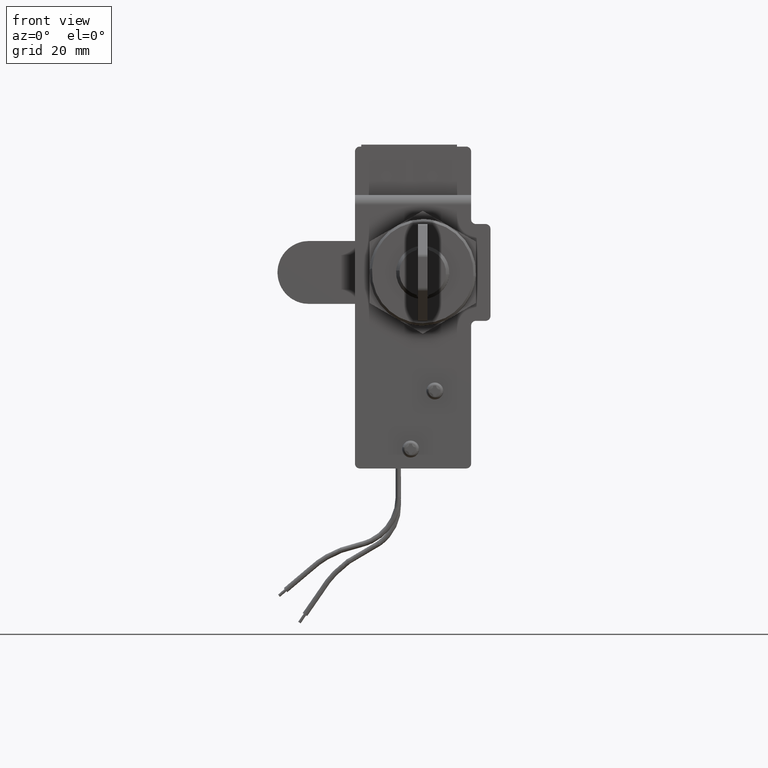
[diagram: clean part render]
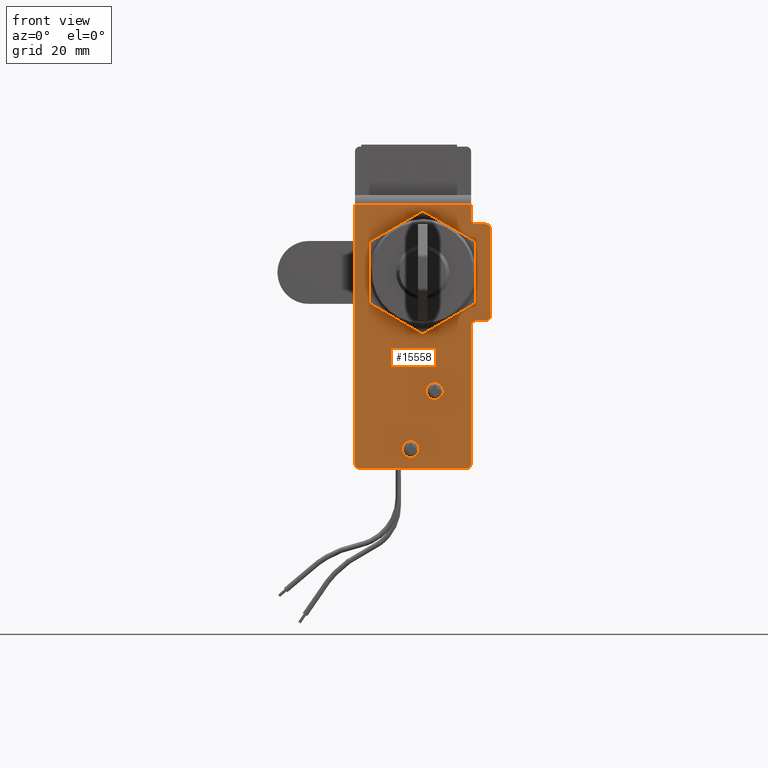
[diagram: same view with one face highlighted and labeled with its STEP entity id]
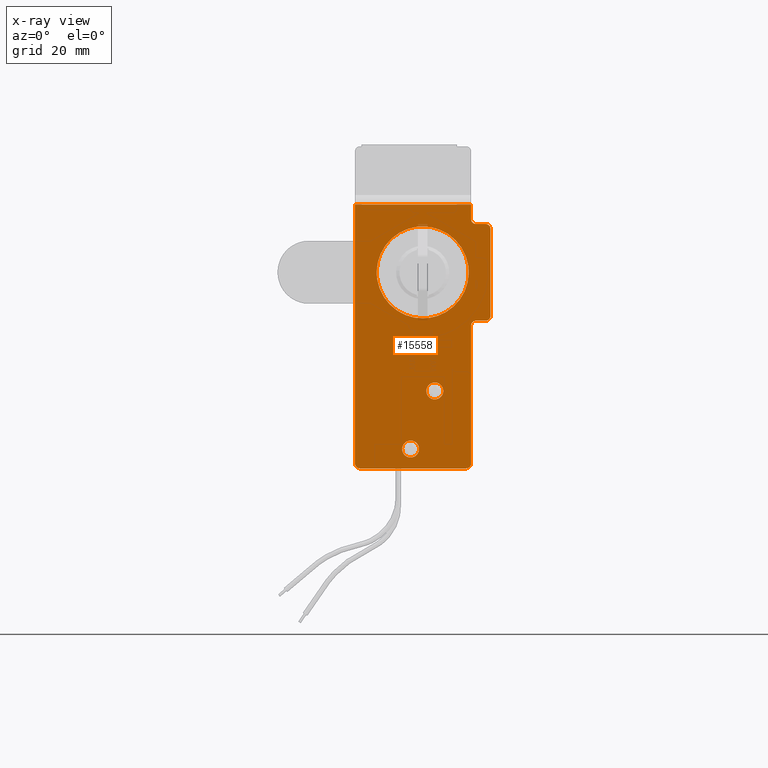
[diagram: x-ray of the same camera — body ghosted, the highlighted face saturated]
A machine part, front view. The second image highlights one B-rep face of the part: STEP entity #15558.
The next image is the same camera in x-ray: the body ghosted, the highlighted face saturated — about 0% of this face is hidden behind the body in this view.
In plain terms, the highlighted face is a freeform B-spline surface patch.
Its self-contained STEP definition (entity closure, byte-faithful):
#12590=CARTESIAN_POINT('',(-0.753264102782336,8.300000000000001,-36.606834944523762));
#12591=VERTEX_POINT('',#12590);
#12597=CARTESIAN_POINT('',(-2.499999999999945,8.300000000000001,-34.749999999999993));
#12598=VERTEX_POINT('',#12597);
#12599=CARTESIAN_POINT('',(-0.753264102782335,8.300000000000001,-36.606834944523769));
#12600=CARTESIAN_POINT('',(-0.749999999999944,8.300000000000001,-36.553467335941889));
#12601=CARTESIAN_POINT('',(-0.749999999999944,8.300000000000001,-36.500000000000000));
#12602=CARTESIAN_POINT('',(-0.749999999999944,8.300000000000001,-34.749999999999993));
#12603=CARTESIAN_POINT('',(-2.499999999999945,8.300000000000001,-34.749999999999993));
#12611=(BOUNDED_CURVE()B_SPLINE_CURVE(2,(#12599,#12600,#12601,#12602,#12603),.UNSPECIFIED.,.F.,.U.)B_SPLINE_CURVE_WITH_KNOTS((3,2,3),(0.239332962208604,0.250000000000000,0.500000000000000),.UNSPECIFIED.)CURVE()GEOMETRIC_REPRESENTATION_ITEM()RATIONAL_B_SPLINE_CURVE((0.976072041601695,0.987502787864293,1.0,0.707106781186547,1.0))REPRESENTATION_ITEM(''));
#12612=EDGE_CURVE('',#12591,#12598,#12611,.T.);
#12614=CARTESIAN_POINT('',(-4.246735897217554,8.300000000000001,-36.393165055476253));
#12615=VERTEX_POINT('',#12614);
#12616=CARTESIAN_POINT('',(-2.499999999999945,8.300000000000001,-34.749999999999993));
#12617=CARTESIAN_POINT('',(-4.146235616765995,8.300000000000001,-34.750000000000000));
#12618=CARTESIAN_POINT('',(-4.246735897217554,8.300000000000001,-36.393165055476246));
#12626=(BOUNDED_CURVE()B_SPLINE_CURVE(2,(#12616,#12617,#12618),.UNSPECIFIED.,.F.,.U.)B_SPLINE_CURVE_WITH_KNOTS((3,3),(0.500000000000000,0.739332962208604),.UNSPECIFIED.)CURVE()GEOMETRIC_REPRESENTATION_ITEM()RATIONAL_B_SPLINE_CURVE((1.0,0.719603993322254,0.976072041601696))REPRESENTATION_ITEM(''));
#12627=EDGE_CURVE('',#12598,#12615,#12626,.T.);
#12661=CARTESIAN_POINT('',(-2.499999999999945,8.300000000000001,-38.250000000000000));
#12662=VERTEX_POINT('',#12661);
#12663=CARTESIAN_POINT('',(-4.246735897217554,8.300000000000001,-36.393165055476238));
#12664=CARTESIAN_POINT('',(-4.249999999999943,8.300000000000001,-36.446532664058118));
#12665=CARTESIAN_POINT('',(-4.249999999999944,8.300000000000001,-36.500000000000000));
#12666=CARTESIAN_POINT('',(-4.249999999999944,8.300000000000001,-38.250000000000000));
#12667=CARTESIAN_POINT('',(-2.499999999999945,8.300000000000001,-38.250000000000000));
#12675=(BOUNDED_CURVE()B_SPLINE_CURVE(2,(#12663,#12664,#12665,#12666,#12667),.UNSPECIFIED.,.F.,.U.)B_SPLINE_CURVE_WITH_KNOTS((3,2,3),(0.739332962208604,0.750000000000000,1.0),.UNSPECIFIED.)CURVE()GEOMETRIC_REPRESENTATION_ITEM()RATIONAL_B_SPLINE_CURVE((0.976072041601695,0.987502787864293,1.0,0.707106781186547,1.0))REPRESENTATION_ITEM(''));
#12676=EDGE_CURVE('',#12615,#12662,#12675,.T.);
#12678=CARTESIAN_POINT('',(-2.499999999999945,8.300000000000001,-38.250000000000000));
#12679=CARTESIAN_POINT('',(-0.853764383233906,8.300000000000001,-38.250000000000007));
#12680=CARTESIAN_POINT('',(-0.753264102782336,8.300000000000001,-36.606834944523769));
#12688=(BOUNDED_CURVE()B_SPLINE_CURVE(2,(#12678,#12679,#12680),.UNSPECIFIED.,.F.,.U.)B_SPLINE_CURVE_WITH_KNOTS((3,3),(0.0,0.239332962208603),.UNSPECIFIED.)CURVE()GEOMETRIC_REPRESENTATION_ITEM()RATIONAL_B_SPLINE_CURVE((1.0,0.719603993322256,0.976072041601693))REPRESENTATION_ITEM(''));
#12689=EDGE_CURVE('',#12662,#12591,#12688,.T.);
#12714=CARTESIAN_POINT('',(4.246735897217665,8.300000000000001,-24.606834944523762));
#12715=VERTEX_POINT('',#12714);
#12721=CARTESIAN_POINT('',(2.500000000000056,8.300000000000001,-22.750000000000000));
#12722=VERTEX_POINT('',#12721);
#12723=CARTESIAN_POINT('',(4.246735897217665,8.299999999999999,-24.606834944523758));
#12724=CARTESIAN_POINT('',(4.250000000000056,8.300000000000001,-24.553467335941882));
#12725=CARTESIAN_POINT('',(4.250000000000056,8.300000000000001,-24.500000000000000));
#12726=CARTESIAN_POINT('',(4.250000000000055,8.300000000000001,-22.750000000000011));
#12727=CARTESIAN_POINT('',(2.500000000000056,8.300000000000001,-22.750000000000000));
#12735=(BOUNDED_CURVE()B_SPLINE_CURVE(2,(#12723,#12724,#12725,#12726,#12727),.UNSPECIFIED.,.F.,.U.)B_SPLINE_CURVE_WITH_KNOTS((3,2,3),(0.239332962208603,0.250000000000000,0.500000000000000),.UNSPECIFIED.)CURVE()GEOMETRIC_REPRESENTATION_ITEM()RATIONAL_B_SPLINE_CURVE((0.976072041601694,0.987502787864292,1.0,0.707106781186547,1.0))REPRESENTATION_ITEM(''));
#12736=EDGE_CURVE('',#12715,#12722,#12735,.T.);
#12738=CARTESIAN_POINT('',(0.753264102782447,8.300000000000001,-24.393165055476238));
#12739=VERTEX_POINT('',#12738);
#12740=CARTESIAN_POINT('',(2.500000000000056,8.300000000000001,-22.750000000000000));
#12741=CARTESIAN_POINT('',(0.853764383234013,8.299999999999999,-22.749999999999993));
#12742=CARTESIAN_POINT('',(0.753264102782447,8.299999999999999,-24.393165055476235));
#12750=(BOUNDED_CURVE()B_SPLINE_CURVE(2,(#12740,#12741,#12742),.UNSPECIFIED.,.F.,.U.)B_SPLINE_CURVE_WITH_KNOTS((3,3),(0.500000000000000,0.739332962208603),.UNSPECIFIED.)CURVE()GEOMETRIC_REPRESENTATION_ITEM()RATIONAL_B_SPLINE_CURVE((1.0,0.719603993322255,0.976072041601694))REPRESENTATION_ITEM(''));
#12751=EDGE_CURVE('',#12722,#12739,#12750,.T.);
#12785=CARTESIAN_POINT('',(2.500000000000056,8.300000000000001,-26.250000000000000));
#12786=VERTEX_POINT('',#12785);
#12787=CARTESIAN_POINT('',(0.753264102782447,8.300000000000001,-24.393165055476235));
#12788=CARTESIAN_POINT('',(0.750000000000056,8.300000000000001,-24.446532664058115));
#12789=CARTESIAN_POINT('',(0.750000000000056,8.300000000000001,-24.500000000000000));
#12790=CARTESIAN_POINT('',(0.750000000000056,8.300000000000001,-26.250000000000000));
#12791=CARTESIAN_POINT('',(2.500000000000056,8.300000000000001,-26.250000000000000));
#12799=(BOUNDED_CURVE()B_SPLINE_CURVE(2,(#12787,#12788,#12789,#12790,#12791),.UNSPECIFIED.,.F.,.U.)B_SPLINE_CURVE_WITH_KNOTS((3,2,3),(0.739332962208603,0.750000000000000,1.0),.UNSPECIFIED.)CURVE()GEOMETRIC_REPRESENTATION_ITEM()RATIONAL_B_SPLINE_CURVE((0.976072041601694,0.987502787864292,1.0,0.707106781186547,1.0))REPRESENTATION_ITEM(''));
#12800=EDGE_CURVE('',#12739,#12786,#12799,.T.);
#12802=CARTESIAN_POINT('',(2.500000000000056,8.300000000000001,-26.250000000000000));
#12803=CARTESIAN_POINT('',(4.146235616766097,8.299999999999999,-26.250000000000000));
#12804=CARTESIAN_POINT('',(4.246735897217666,8.300000000000001,-24.606834944523765));
#12812=(BOUNDED_CURVE()B_SPLINE_CURVE(2,(#12802,#12803,#12804),.UNSPECIFIED.,.F.,.U.)B_SPLINE_CURVE_WITH_KNOTS((3,3),(0.0,0.239332962208603),.UNSPECIFIED.)CURVE()GEOMETRIC_REPRESENTATION_ITEM()RATIONAL_B_SPLINE_CURVE((1.0,0.719603993322255,0.976072041601694))REPRESENTATION_ITEM(''));
#12813=EDGE_CURVE('',#12786,#12715,#12812,.T.);
#12838=CARTESIAN_POINT('',(9.490958105021424,8.300000000000001,-0.414384180113234));
#12839=VERTEX_POINT('',#12838);
#12845=CARTESIAN_POINT('',(5.082116E-016,8.300000000000001,9.500000000000000));
#12846=VERTEX_POINT('',#12845);
#12847=CARTESIAN_POINT('',(5.082116E-016,8.300000000000001,9.500000000000000));
#12848=CARTESIAN_POINT('',(9.500000000000000,8.300000000000001,9.500000000000000));
#12849=CARTESIAN_POINT('',(9.500000000000000,8.300000000000001,0.0));
#12850=CARTESIAN_POINT('',(9.500000000000000,8.300000000000001,-0.207290737481792));
#12851=CARTESIAN_POINT('',(9.490958105021425,8.300000000000001,-0.414384180113232));
#12859=(BOUNDED_CURVE()B_SPLINE_CURVE(2,(#12847,#12848,#12849,#12850,#12851),.UNSPECIFIED.,.F.,.U.)B_SPLINE_CURVE_WITH_KNOTS((3,2,3),(0.500000000000000,0.750000000000000,0.757645461432867),.UNSPECIFIED.)CURVE()GEOMETRIC_REPRESENTATION_ITEM()RATIONAL_B_SPLINE_CURVE((1.0,0.707106781186548,1.0,0.991042784766454,0.982633425881820))REPRESENTATION_ITEM(''));
#12860=EDGE_CURVE('',#12846,#12839,#12859,.T.);
#12862=CARTESIAN_POINT('',(-9.490958105021424,8.300000000000001,0.414384180113236));
#12863=VERTEX_POINT('',#12862);
#12864=CARTESIAN_POINT('',(-9.490958105021425,8.300000000000001,0.414384180113235));
#12865=CARTESIAN_POINT('',(-9.094271551283960,8.300000000000001,9.500000000000000));
#12866=CARTESIAN_POINT('',(5.082116E-016,8.300000000000001,9.500000000000000));
#12874=(BOUNDED_CURVE()B_SPLINE_CURVE(2,(#12864,#12865,#12866),.UNSPECIFIED.,.F.,.U.)B_SPLINE_CURVE_WITH_KNOTS((3,3),(0.257645461432867,0.500000000000000),.UNSPECIFIED.)CURVE()GEOMETRIC_REPRESENTATION_ITEM()RATIONAL_B_SPLINE_CURVE((0.982633425881820,0.716063996420093,1.0))REPRESENTATION_ITEM(''));
#12875=EDGE_CURVE('',#12863,#12846,#12874,.T.);
#12913=CARTESIAN_POINT('',(5.082116E-016,8.300000000000001,-9.500000000000000));
#12914=VERTEX_POINT('',#12913);
#12915=CARTESIAN_POINT('',(5.082116E-016,8.300000000000001,-9.500000000000000));
#12916=CARTESIAN_POINT('',(-9.500000000000000,8.300000000000001,-9.500000000000000));
#12917=CARTESIAN_POINT('',(-9.500000000000000,8.300000000000001,0.0));
#12918=CARTESIAN_POINT('',(-9.500000000000000,8.300000000000001,0.207290737481794));
#12919=CARTESIAN_POINT('',(-9.490958105021425,8.300000000000001,0.414384180113235));
#12927=(BOUNDED_CURVE()B_SPLINE_CURVE(2,(#12915,#12916,#12917,#12918,#12919),.UNSPECIFIED.,.F.,.U.)B_SPLINE_CURVE_WITH_KNOTS((3,2,3),(0.0,0.250000000000000,0.257645461432867),.UNSPECIFIED.)CURVE()GEOMETRIC_REPRESENTATION_ITEM()RATIONAL_B_SPLINE_CURVE((1.0,0.707106781186548,1.0,0.991042784766454,0.982633425881820))REPRESENTATION_ITEM(''));
#12928=EDGE_CURVE('',#12914,#12863,#12927,.T.);
#12930=CARTESIAN_POINT('',(9.490958105021425,8.300000000000001,-0.414384180113232));
#12931=CARTESIAN_POINT('',(9.094271551283962,8.300000000000001,-9.499999999999998));
#12932=CARTESIAN_POINT('',(5.082116E-016,8.300000000000001,-9.500000000000000));
#12940=(BOUNDED_CURVE()B_SPLINE_CURVE(2,(#12930,#12931,#12932),.UNSPECIFIED.,.F.,.U.)B_SPLINE_CURVE_WITH_KNOTS((3,3),(0.757645461432867,1.0),.UNSPECIFIED.)CURVE()GEOMETRIC_REPRESENTATION_ITEM()RATIONAL_B_SPLINE_CURVE((0.982633425881820,0.716063996420093,1.0))REPRESENTATION_ITEM(''));
#12941=EDGE_CURVE('',#12839,#12914,#12940,.T.);
#15280=CARTESIAN_POINT('',(-13.999999999997900,8.300000000000001,14.0));
#15281=VERTEX_POINT('',#15280);
#15295=CARTESIAN_POINT('',(10.0,8.300000000000001,14.0));
#15296=VERTEX_POINT('',#15295);
#15297=CARTESIAN_POINT('',(10.0,8.300000000000001,14.0));
#15298=CARTESIAN_POINT('',(-13.999999999997900,8.300000000000001,14.0));
#15299=QUASI_UNIFORM_CURVE('',1,(#15297,#15298),.UNSPECIFIED.,.F.,.U.);
#15300=EDGE_CURVE('',#15296,#15281,#15299,.T.);
#15395=CARTESIAN_POINT('',(15.398599945730460,8.299999999999999,16.722274894368429));
#15396=CARTESIAN_POINT('',(15.398599945730460,8.299999999999999,-43.222276356172337));
#15397=CARTESIAN_POINT('',(-15.398600696746890,8.300000000000003,16.722274894368429));
#15398=CARTESIAN_POINT('',(-15.398600696746890,8.300000000000003,-43.222276356172337));
#15399=B_SPLINE_SURFACE_WITH_KNOTS('',1,1,((#15395,#15397),(#15396,#15398)),.UNSPECIFIED.,.F.,.F.,.U.,(2,2),(2,2),(0.0,59.944551250540769),(0.0,30.797200642477350),.UNSPECIFIED.);
#15400=CARTESIAN_POINT('',(-13.999999999997900,8.300000000000001,-39.500000000000000));
#15401=VERTEX_POINT('',#15400);
#15402=CARTESIAN_POINT('',(-13.999999999997900,8.300000000000001,14.0));
#15403=CARTESIAN_POINT('',(-13.999999999997900,8.300000000000001,-39.500000000000000));
#15404=QUASI_UNIFORM_CURVE('',1,(#15402,#15403),.UNSPECIFIED.,.F.,.U.);
#15405=EDGE_CURVE('',#15281,#15401,#15404,.T.);
#15406=ORIENTED_EDGE('',*,*,#15405,.T.);
#15407=CARTESIAN_POINT('',(-12.999999999997900,8.300000000000090,-40.500000000000000));
#15408=VERTEX_POINT('',#15407);
#15409=CARTESIAN_POINT('',(-13.999999999997900,8.300000000000001,-39.500000000000000));
#15410=CARTESIAN_POINT('',(-13.999999999997899,8.300000000000001,-40.500000000000000));
#15411=CARTESIAN_POINT('',(-12.999999999997900,8.300000000000001,-40.500000000000000));
#15419=(BOUNDED_CURVE()B_SPLINE_CURVE(2,(#15409,#15410,#15411),.UNSPECIFIED.,.F.,.U.)CURVE()GEOMETRIC_REPRESENTATION_ITEM()QUASI_UNIFORM_CURVE()RATIONAL_B_SPLINE_CURVE((1.0,0.707106781186548,1.0))REPRESENTATION_ITEM(''));
#15420=EDGE_CURVE('',#15401,#15408,#15419,.T.);
#15421=ORIENTED_EDGE('',*,*,#15420,.T.);
#15422=CARTESIAN_POINT('',(9.0,8.300000000000090,-40.500000000000000));
#15423=VERTEX_POINT('',#15422);
#15424=CARTESIAN_POINT('',(9.0,8.300000000000090,-40.500000000000000));
#15425=CARTESIAN_POINT('',(-12.999999999997900,8.300000000000090,-40.500000000000000));
#15426=QUASI_UNIFORM_CURVE('',1,(#15424,#15425),.UNSPECIFIED.,.F.,.U.);
#15427=EDGE_CURVE('',#15423,#15408,#15426,.T.);
#15428=ORIENTED_EDGE('',*,*,#15427,.F.);
#15429=CARTESIAN_POINT('',(10.0,8.300000000000090,-39.500000000000000));
#15430=VERTEX_POINT('',#15429);
#15431=CARTESIAN_POINT('',(9.0,8.300000000000090,-40.500000000000000));
#15432=CARTESIAN_POINT('',(9.999999999999998,8.300000000000090,-40.500000000000000));
#15433=CARTESIAN_POINT('',(9.999999999999998,8.300000000000090,-39.500000000000000));
#15441=(BOUNDED_CURVE()B_SPLINE_CURVE(2,(#15431,#15432,#15433),.UNSPECIFIED.,.F.,.U.)CURVE()GEOMETRIC_REPRESENTATION_ITEM()QUASI_UNIFORM_CURVE()RATIONAL_B_SPLINE_CURVE((1.0,0.707106781186548,1.0))REPRESENTATION_ITEM(''));
#15442=EDGE_CURVE('',#15423,#15430,#15441,.T.);
#15443=ORIENTED_EDGE('',*,*,#15442,.T.);
#15444=CARTESIAN_POINT('',(10.0,8.300000000000090,-11.0));
#15445=VERTEX_POINT('',#15444);
#15446=CARTESIAN_POINT('',(10.0,8.300000000000090,-11.0));
#15447=CARTESIAN_POINT('',(10.0,8.300000000000090,-39.500000000000000));
#15448=QUASI_UNIFORM_CURVE('',1,(#15446,#15447),.UNSPECIFIED.,.F.,.U.);
#15449=EDGE_CURVE('',#15445,#15430,#15448,.T.);
#15450=ORIENTED_EDGE('',*,*,#15449,.F.);
#15451=CARTESIAN_POINT('',(11.0,8.300000000000090,-10.0));
#15452=VERTEX_POINT('',#15451);
#15453=CARTESIAN_POINT('',(10.0,8.300000000000090,-11.0));
#15454=CARTESIAN_POINT('',(9.999999999999998,8.300000000000001,-9.999999999999998));
#15455=CARTESIAN_POINT('',(11.0,8.300000000000001,-9.999999999999998));
#15463=(BOUNDED_CURVE()B_SPLINE_CURVE(2,(#15453,#15454,#15455),.UNSPECIFIED.,.F.,.U.)CURVE()GEOMETRIC_REPRESENTATION_ITEM()QUASI_UNIFORM_CURVE()RATIONAL_B_SPLINE_CURVE((1.0,0.707106781186548,1.0))REPRESENTATION_ITEM(''));
#15464=EDGE_CURVE('',#15445,#15452,#15463,.T.);
#15465=ORIENTED_EDGE('',*,*,#15464,.T.);
#15466=CARTESIAN_POINT('',(13.0,8.300000000000090,-10.0));
#15467=VERTEX_POINT('',#15466);
#15468=CARTESIAN_POINT('',(13.0,8.300000000000090,-10.0));
#15469=CARTESIAN_POINT('',(11.0,8.300000000000090,-10.0));
#15470=QUASI_UNIFORM_CURVE('',1,(#15468,#15469),.UNSPECIFIED.,.F.,.U.);
#15471=EDGE_CURVE('',#15467,#15452,#15470,.T.);
#15472=ORIENTED_EDGE('',*,*,#15471,.F.);
#15473=CARTESIAN_POINT('',(14.0,8.300000000000090,-9.0));
#15474=VERTEX_POINT('',#15473);
#15475=CARTESIAN_POINT('',(13.0,8.300000000000090,-10.0));
#15476=CARTESIAN_POINT('',(13.999999999999998,8.300000000000001,-9.999999999999998));
#15477=CARTESIAN_POINT('',(14.0,8.300000000000001,-9.0));
#15485=(BOUNDED_CURVE()B_SPLINE_CURVE(2,(#15475,#15476,#15477),.UNSPECIFIED.,.F.,.U.)CURVE()GEOMETRIC_REPRESENTATION_ITEM()QUASI_UNIFORM_CURVE()RATIONAL_B_SPLINE_CURVE((1.0,0.707106781186548,1.0))REPRESENTATION_ITEM(''));
#15486=EDGE_CURVE('',#15467,#15474,#15485,.T.);
#15487=ORIENTED_EDGE('',*,*,#15486,.T.);
#15488=CARTESIAN_POINT('',(13.999999999998700,8.300000000000090,9.0));
#15489=VERTEX_POINT('',#15488);
#15490=CARTESIAN_POINT('',(13.999999999998700,8.300000000000090,9.0));
#15491=CARTESIAN_POINT('',(14.0,8.300000000000090,-9.0));
#15492=QUASI_UNIFORM_CURVE('',1,(#15490,#15491),.UNSPECIFIED.,.F.,.U.);
#15493=EDGE_CURVE('',#15489,#15474,#15492,.T.);
#15494=ORIENTED_EDGE('',*,*,#15493,.F.);
#15495=CARTESIAN_POINT('',(12.999999999998700,8.300000000000090,10.0));
#15496=VERTEX_POINT('',#15495);
#15497=CARTESIAN_POINT('',(13.999999999998700,8.300000000000090,9.0));
#15498=CARTESIAN_POINT('',(13.999999999998700,8.300000000000001,9.999999999999998));
#15499=CARTESIAN_POINT('',(12.999999999998700,8.300000000000001,9.999999999999998));
#15507=(BOUNDED_CURVE()B_SPLINE_CURVE(2,(#15497,#15498,#15499),.UNSPECIFIED.,.F.,.U.)CURVE()GEOMETRIC_REPRESENTATION_ITEM()QUASI_UNIFORM_CURVE()RATIONAL_B_SPLINE_CURVE((1.0,0.707106781186548,1.0))REPRESENTATION_ITEM(''));
#15508=EDGE_CURVE('',#15489,#15496,#15507,.T.);
#15509=ORIENTED_EDGE('',*,*,#15508,.T.);
#15510=CARTESIAN_POINT('',(11.0,8.300000000000090,10.0));
#15511=VERTEX_POINT('',#15510);
#15512=CARTESIAN_POINT('',(11.0,8.300000000000090,10.0));
#15513=CARTESIAN_POINT('',(12.999999999998700,8.300000000000090,10.0));
#15514=QUASI_UNIFORM_CURVE('',1,(#15512,#15513),.UNSPECIFIED.,.F.,.U.);
#15515=EDGE_CURVE('',#15511,#15496,#15514,.T.);
#15516=ORIENTED_EDGE('',*,*,#15515,.F.);
#15517=CARTESIAN_POINT('',(10.0,8.300000000000001,11.0));
#15518=VERTEX_POINT('',#15517);
#15519=CARTESIAN_POINT('',(11.0,8.300000000000090,10.0));
#15520=CARTESIAN_POINT('',(9.999999999999998,8.300000000000001,9.999999999999998));
#15521=CARTESIAN_POINT('',(9.999999999999998,8.300000000000001,11.0));
#15529=(BOUNDED_CURVE()B_SPLINE_CURVE(2,(#15519,#15520,#15521),.UNSPECIFIED.,.F.,.U.)CURVE()GEOMETRIC_REPRESENTATION_ITEM()QUASI_UNIFORM_CURVE()RATIONAL_B_SPLINE_CURVE((1.0,0.707106781186548,1.0))REPRESENTATION_ITEM(''));
#15530=EDGE_CURVE('',#15511,#15518,#15529,.T.);
#15531=ORIENTED_EDGE('',*,*,#15530,.T.);
#15532=CARTESIAN_POINT('',(10.0,8.300000000000001,14.0));
#15533=CARTESIAN_POINT('',(10.0,8.300000000000001,11.0));
#15534=QUASI_UNIFORM_CURVE('',1,(#15532,#15533),.UNSPECIFIED.,.F.,.U.);
#15535=EDGE_CURVE('',#15296,#15518,#15534,.T.);
#15536=ORIENTED_EDGE('',*,*,#15535,.F.);
#15537=ORIENTED_EDGE('',*,*,#15300,.T.);
#15538=EDGE_LOOP('',(#15406,#15421,#15428,#15443,#15450,#15465,#15472,#15487,#15494,#15509,#15516,#15531,#15536,#15537));
#15539=FACE_OUTER_BOUND('',#15538,.T.);
#15540=ORIENTED_EDGE('',*,*,#12928,.T.);
#15541=ORIENTED_EDGE('',*,*,#12875,.T.);
#15542=ORIENTED_EDGE('',*,*,#12860,.T.);
#15543=ORIENTED_EDGE('',*,*,#12941,.T.);
#15544=EDGE_LOOP('',(#15540,#15541,#15542,#15543));
#15545=FACE_BOUND('',#15544,.T.);
#15546=ORIENTED_EDGE('',*,*,#12751,.F.);
#15547=ORIENTED_EDGE('',*,*,#12736,.F.);
#15548=ORIENTED_EDGE('',*,*,#12813,.F.);
#15549=ORIENTED_EDGE('',*,*,#12800,.F.);
#15550=EDGE_LOOP('',(#15546,#15547,#15548,#15549));
#15551=FACE_BOUND('',#15550,.T.);
#15552=ORIENTED_EDGE('',*,*,#12627,.F.);
#15553=ORIENTED_EDGE('',*,*,#12612,.F.);
#15554=ORIENTED_EDGE('',*,*,#12689,.F.);
#15555=ORIENTED_EDGE('',*,*,#12676,.F.);
#15556=EDGE_LOOP('',(#15552,#15553,#15554,#15555));
#15557=FACE_BOUND('',#15556,.T.);
#15558=ADVANCED_FACE('',(#15539,#15545,#15551,#15557),#15399,.F.);